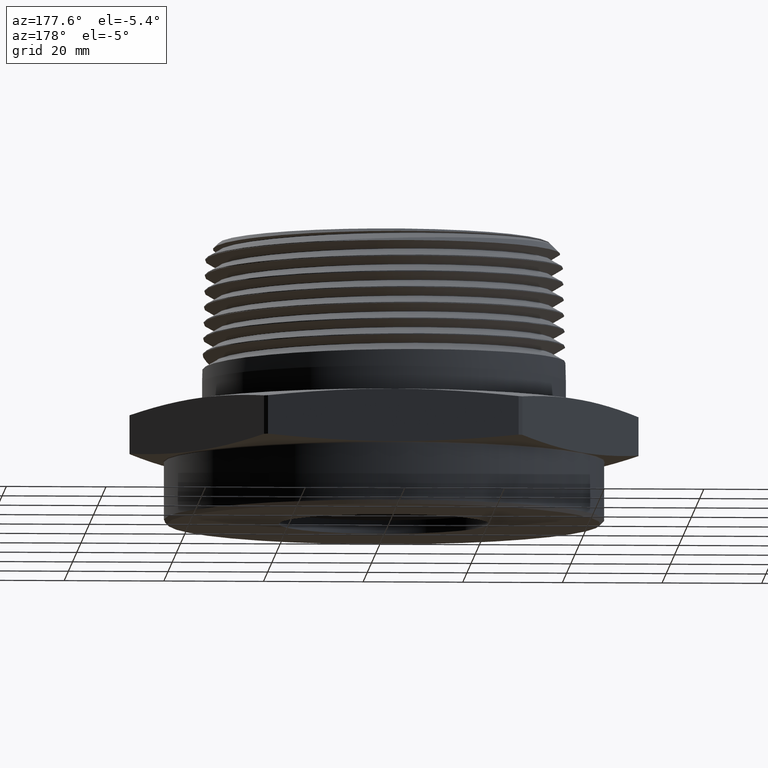
[diagram: clean part render]
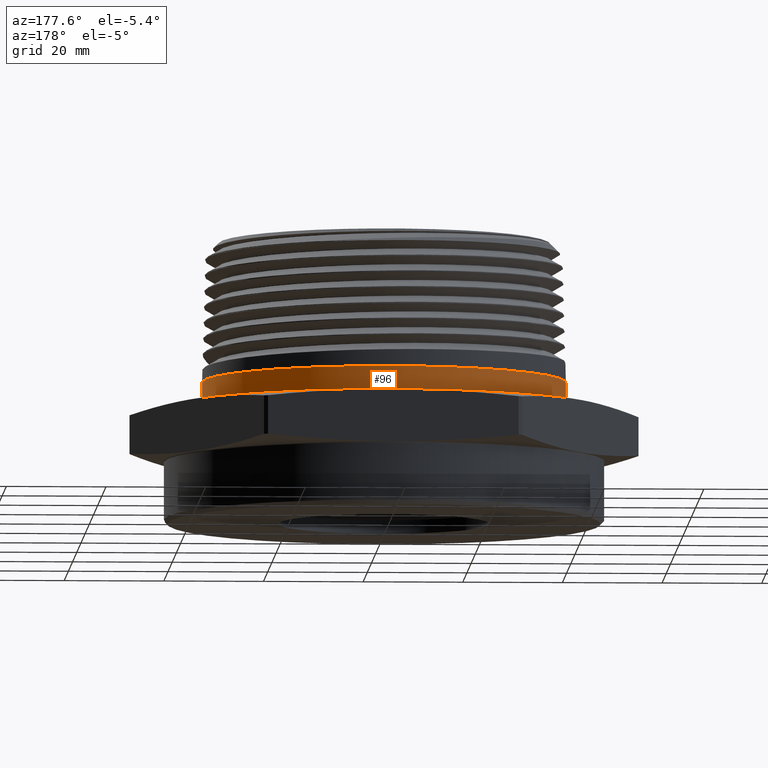
[diagram: same view with one face highlighted and labeled with its STEP entity id]
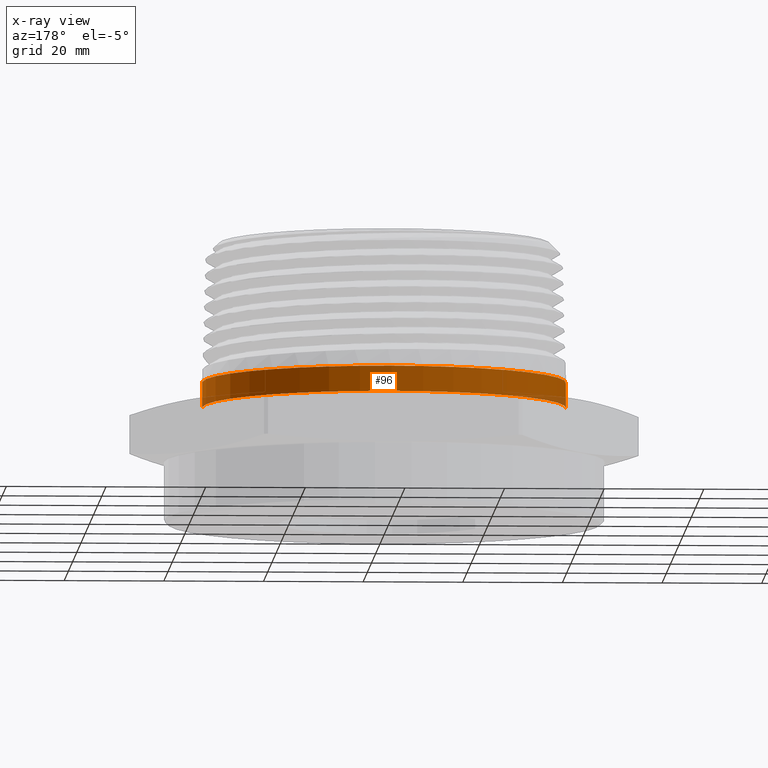
[diagram: x-ray of the same camera — body ghosted, the highlighted face saturated]
A machine part, auxiliary view. The second image highlights one B-rep face of the part: STEP entity #96.
The next image is the same camera in x-ray: the body ghosted, the highlighted face saturated — about 3% of this face is hidden behind the body in this view.
In plain terms, the highlighted cylindrical surface (partial cylindrical patch) has radius 36.5125 mm, axis along (-0, -0, -1).
Its self-contained STEP definition (entity closure, byte-faithful):
#96 = ADVANCED_FACE ( 'NONE', ( #8142 ), #8145, .T. ) ;
#182 = AXIS2_PLACEMENT_3D ( 'NONE', #5401, #5402, #5403 ) ;
#190 = AXIS2_PLACEMENT_3D ( 'NONE', #5729, #5730, #5731 ) ;
#924 = LINE ( 'NONE', #5400, #928 ) ;
#926 = CIRCLE ( 'NONE', #182, 1.437500000000000000 ) ;
#928 = VECTOR ( 'NONE', #5334, 39.37007874015748100 ) ;
#954 = CIRCLE ( 'NONE', #190, 1.437500000000000000 ) ;
#956 = LINE ( 'NONE', #5724, #958 ) ;
#958 = VECTOR ( 'NONE', #5725, 39.37007874015748100 ) ;
#2431 = AXIS2_PLACEMENT_3D ( 'NONE', #3546, #3547, #3545 ) ;
#2440 = ORIENTED_EDGE ( 'NONE', *, *, #6483, .T. ) ;
#2441 = ORIENTED_EDGE ( 'NONE', *, *, #6484, .F. ) ;
#3545 = DIRECTION ( 'NONE',  ( -1.000000000000000000, 0.0000000000000000000, 0.0000000000000000000 ) ) ;
#3546 = CARTESIAN_POINT ( 'NONE',  ( 0.0000000000000000000, 0.0000000000000000000, 1.729999999999999800 ) ) ;
#3547 = DIRECTION ( 'NONE',  ( -0.0000000000000000000, -0.0000000000000000000, -1.000000000000000000 ) ) ;
#4445 = CARTESIAN_POINT ( 'NONE',  ( -1.437500000000000000, 0.0000000000000000000, 0.4300000000000000500 ) ) ;
#4451 = CARTESIAN_POINT ( 'NONE',  ( -1.437500000000000000, 0.0000000000000000000, 0.6297337689372655100 ) ) ;
#4454 = CARTESIAN_POINT ( 'NONE',  ( 1.437500000000000000, 1.760429773774320200E-016, 0.4300000000000000500 ) ) ;
#4459 = CARTESIAN_POINT ( 'NONE',  ( 1.437500000000000000, 1.760429773774320200E-016, 0.6297337689372655100 ) ) ;
#5334 = DIRECTION ( 'NONE',  ( -0.0000000000000000000, -0.0000000000000000000, -1.000000000000000000 ) ) ;
#5400 = CARTESIAN_POINT ( 'NONE',  ( -1.437500000000000000, 0.0000000000000000000, 1.729999999999999800 ) ) ;
#5401 = CARTESIAN_POINT ( 'NONE',  ( 0.0000000000000000000, 0.0000000000000000000, 0.4300000000000000500 ) ) ;
#5402 = DIRECTION ( 'NONE',  ( -0.0000000000000000000, 0.0000000000000000000, 1.000000000000000000 ) ) ;
#5403 = DIRECTION ( 'NONE',  ( 1.000000000000000000, 0.0000000000000000000, 0.0000000000000000000 ) ) ;
#5724 = CARTESIAN_POINT ( 'NONE',  ( 1.437500000000000000, 1.760429773774320200E-016, 1.729999999999999800 ) ) ;
#5725 = DIRECTION ( 'NONE',  ( -0.0000000000000000000, -0.0000000000000000000, -1.000000000000000000 ) ) ;
#5729 = CARTESIAN_POINT ( 'NONE',  ( 0.0000000000000000000, 0.0000000000000000000, 0.6297337689372655100 ) ) ;
#5730 = DIRECTION ( 'NONE',  ( 0.0000000000000000000, 0.0000000000000000000, 1.000000000000000000 ) ) ;
#5731 = DIRECTION ( 'NONE',  ( -1.000000000000000000, 0.0000000000000000000, 0.0000000000000000000 ) ) ;
#6290 = ORIENTED_EDGE ( 'NONE', *, *, #6554, .F. ) ;
#6291 = ORIENTED_EDGE ( 'NONE', *, *, #6555, .T. ) ;
#6326 = VERTEX_POINT ( 'NONE', #4445 ) ;
#6424 = VERTEX_POINT ( 'NONE', #4454 ) ;
#6429 = VERTEX_POINT ( 'NONE', #4459 ) ;
#6430 = VERTEX_POINT ( 'NONE', #4451 ) ;
#6483 = EDGE_CURVE ( 'NONE', #6424, #6326, #926, .T. ) ;
#6484 = EDGE_CURVE ( 'NONE', #6430, #6326, #924, .T. ) ;
#6554 = EDGE_CURVE ( 'NONE', #6429, #6430, #954, .T. ) ;
#6555 = EDGE_CURVE ( 'NONE', #6429, #6424, #956, .T. ) ;
#8142 = FACE_OUTER_BOUND ( 'NONE', #8182, .T. ) ;
#8145 = CYLINDRICAL_SURFACE ( 'NONE', #2431, 1.437500000000000000 ) ;
#8182 = EDGE_LOOP ( 'NONE', ( #6290, #6291, #2440, #2441 ) ) ;